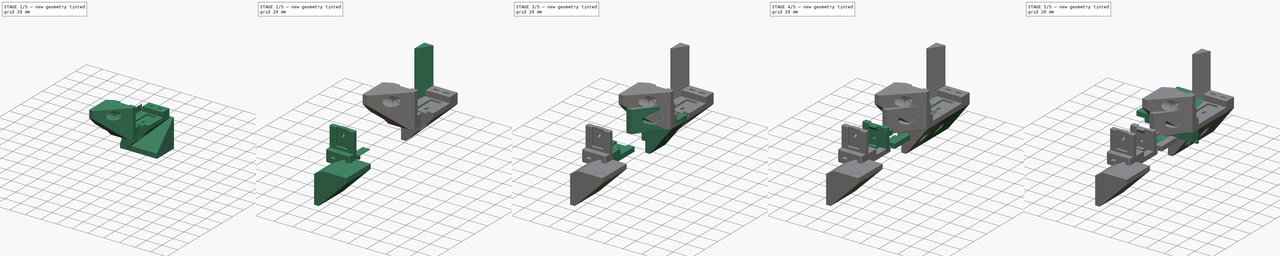
[diagram: build sequence overview — one tinted view per stage of 5, left to right]
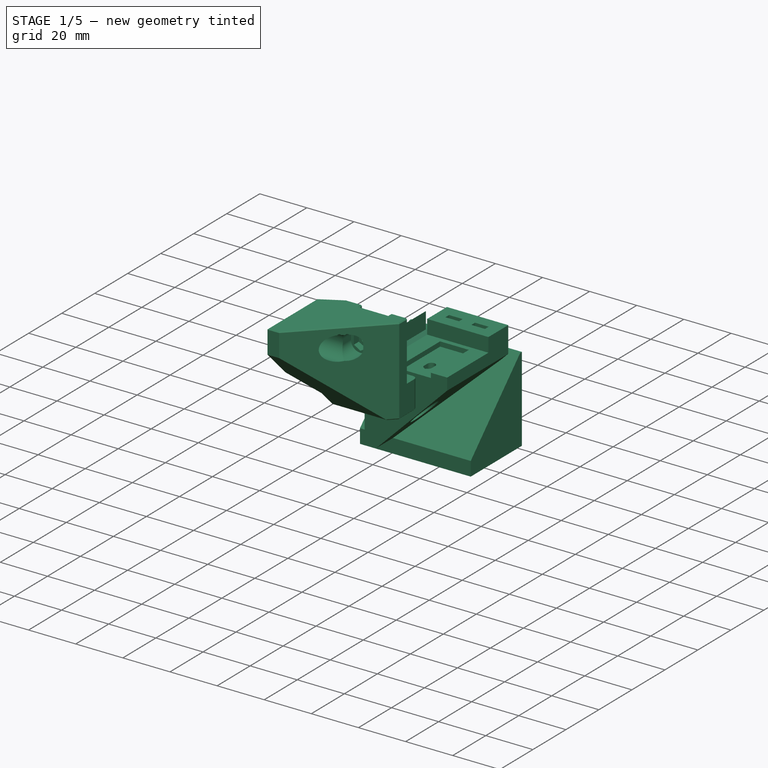
[diagram: stage 1 of 5 — iso view after this stage's code; geometry added in this stage tinted green]
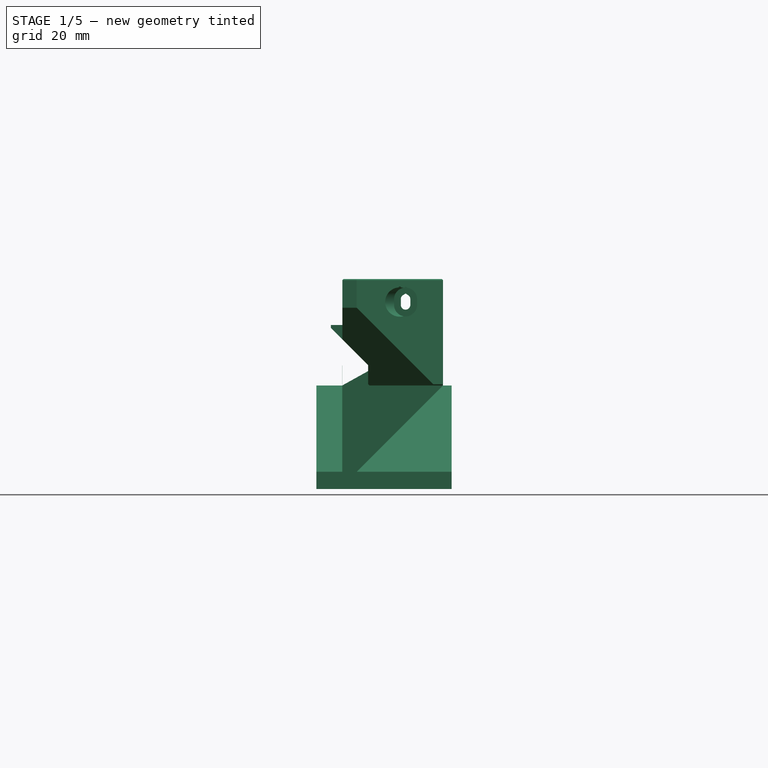
[diagram: stage 1 of 5 — front view after this stage's code; geometry added in this stage tinted green]
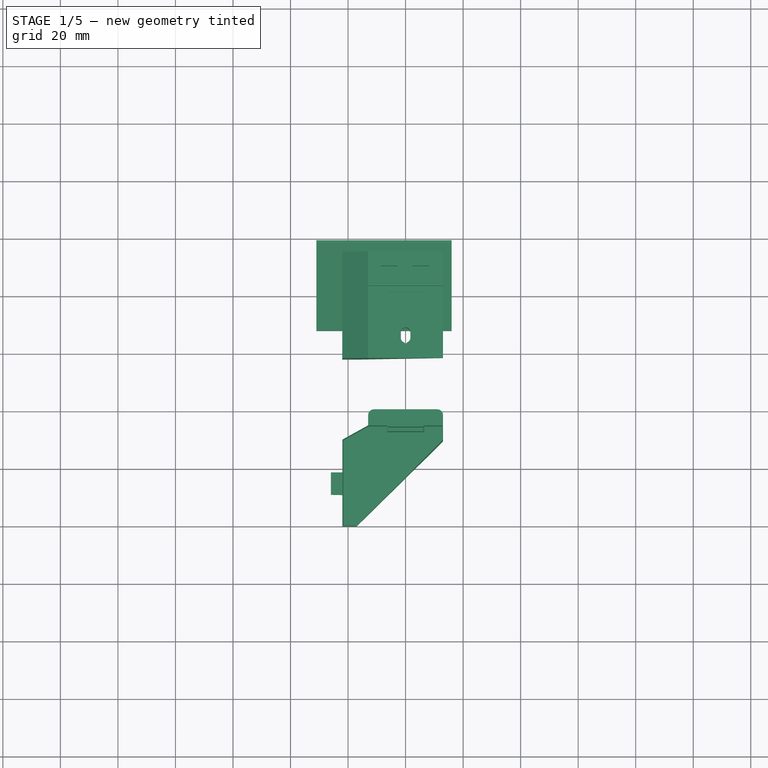
[diagram: stage 1 of 5 — top view after this stage's code; geometry added in this stage tinted green]
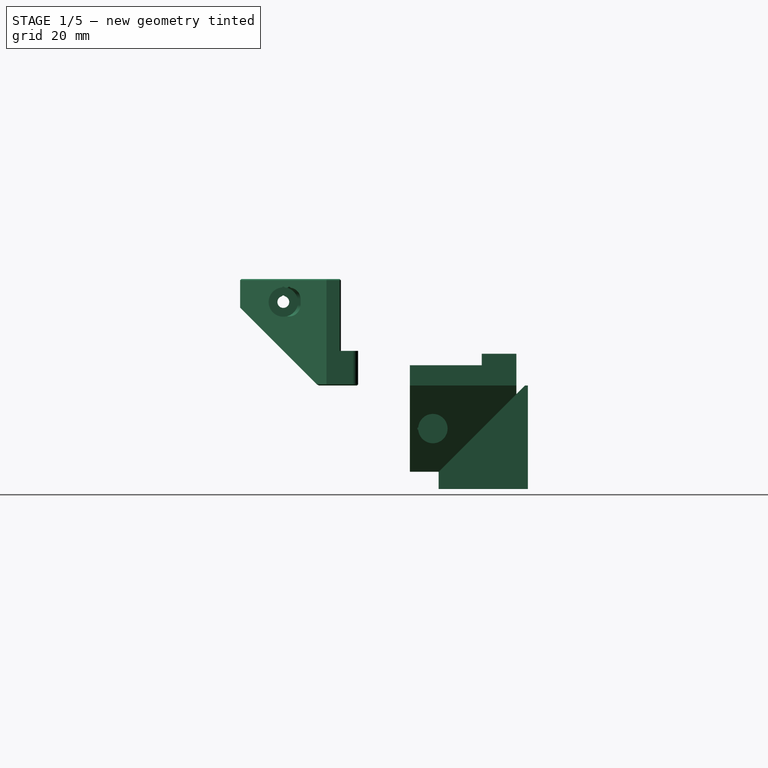
[diagram: stage 1 of 5 — right view after this stage's code; geometry added in this stage tinted green]
FCSTD DOCUMENT  (FreeCAD 0.18R14555 (Git shallow))
Label: 01-original-prusa-300mm-rail
License: All rights reserved
LicenseURL: http://en.wikipedia.org/wiki/All_rights_reserved
objects: Part::Box×48, Part::Cut×39, Part::Cylinder×31, Part::Feature×24, Part::MultiFuse×18, Part::Chamfer×15, App::DocumentObjectGroup×4, Sketcher::SketchObject×3, PartDesign::Pad×3, PartDesign::Body×3, Part::Fillet×2
note: 189 computed .brp shape members not serialized (recipe doc carries the construction recipe); baked Part::Feature solids carry a one-line shape summary decoded from their .brp

FEATURE [Part::Box] Box138  label="01-cut-out010"
  AttacherType = Attacher::AttachEngine3D
  Height = 2
  Length = 12.2
  Placement = pos=(-6.1,118,3) rot=(0,0,1;0rad)
  Width = 23
FEATURE [Part::Box] Box141  label="square-nut-017"
  AttacherType = Attacher::AttachEngine3D
  Height = 11
  Length = 5.8
  Placement = pos=(-8.6,147.8,0.5) rot=(0,0,1;0rad)
  Width = 2.2
FEATURE [Part::Cylinder] Cylinder045  label="drill-hole-017"
  Angle = 360
  AttacherType = Attacher::AttachEngine3D
  Height = 10
  Placement = pos=(-5.5,155,3.5) rot=(1,0,0;1.5708rad)
  Radius = 1.65
FEATURE [Part::Box] Box147  label="square-nut-018"
  AttacherType = Attacher::AttachEngine3D
  Height = 11
  Length = 5.8
  Placement = pos=(2.4,147.8,0.5) rot=(0,0,1;0rad)
  Width = 2.2
FEATURE [Part::Cylinder] Cylinder046  label="drill-hole-018"
  Angle = 360
  AttacherType = Attacher::AttachEngine3D
  Height = 10
  Placement = pos=(5.5,155,3.5) rot=(1,0,0;1.5708rad)
  Radius = 1.65
FEATURE [Part::Box] Box149  label="head-stopper007"
  AttacherType = Attacher::AttachEngine3D
  Height = 11
  Length = 26
  Placement = pos=(-13,143,0) rot=(0,0,1;0rad)
  Width = 12
FEATURE [Part::Cylinder] Cylinder056
  Angle = 360
  AttacherType = Attacher::AttachEngine3D
  Height = 30
  Placement = pos=(6,126,-15) rot=(0,-1,0;1.5708rad)
  Radius = 2.05
FEATURE [Part::Cylinder] Cylinder057
  Angle = 360
  AttacherType = Attacher::AttachEngine3D
  Height = 30
  Placement = pos=(6,124.2,-15) rot=(0,-1,0;1.5708rad)
  Radius = 0.5
FEATURE [Part::Cylinder] Cylinder058
  Angle = 360
  AttacherType = Attacher::AttachEngine3D
  Height = 30
  Placement = pos=(13,126,-15) rot=(0,-1,0;1.5708rad)
  Radius = 5.1
FEATURE [Part::Cylinder] Cylinder059
  Angle = 360
  AttacherType = Attacher::AttachEngine3D
  Height = 30
  Placement = pos=(13,121.1,-15) rot=(0,-1,0;1.5708rad)
  Radius = 0.5
FEATURE [Part::Cylinder] Cylinder060  label="rail-bolt022"
  Angle = 360
  AttacherType = Attacher::AttachEngine3D
  Height = 44
  Placement = pos=(0,125,0) rot=(0,0,1;0rad)
  Radius = 1.65
FEATURE [Part::Cylinder] Cylinder061  label="rail-bolt023"
  Angle = 360
  AttacherType = Attacher::AttachEngine3D
  Height = 44
  Placement = pos=(0,127,0) rot=(0,0,1;0rad)
  Radius = 1.65
FEATURE [Part::Box] Box160  label="bolt-play005"
  AttacherType = Attacher::AttachEngine3D
  Height = 44
  Length = 3.3
  Placement = pos=(-1.65,125,0) rot=(0,0,1;0rad)
  Width = 2
FEATURE [Part::MultiFuse] Fusion019
  Placement = pos=(0,0,-36) rot=(0,0,1;0rad)
  Shapes = -> [Cylinder060,Cylinder061,Box160]
FEATURE [Part::Cylinder] Cylinder062  label="Cylinder060"
  Angle = 360
  AttacherType = Attacher::AttachEngine3D
  Height = 38
  Placement = pos=(0,123.6,-30) rot=(0,0,1;0rad)
  Radius = 0.5
FEATURE [Part::MultiFuse] Fusion026003003
  Shapes = -> [Cylinder046,Box141,Cylinder045,Box147]
FEATURE [PartDesign::Body] Body  label="bridge-reiangle"
  Group = -> [Sketch,Pad]
  Origin = -> Origin
  Tip = -> Pad
FEATURE [Part::Feature] Pad002
  Placement = pos=(-15,155,3.4e-14) rot=(1,0,0;1.5708rad)
  shape: bbox 35 x 37 x 35 mm, 8 faces (baked)
FEATURE [Part::Cut] Cut001003002047034002
  Base = -> Pad002
  Tool = -> Box138
FEATURE [Part::MultiFuse] Fusion026003004
  Shapes = -> [Cut001003002047034002,Box149]
FEATURE [Part::Cut] Cut001003002047034003
  Base = -> Fusion026003004
  Tool = -> Fusion026003003
FEATURE [Part::Cut] Cut001003002047034004
  Base = -> Cut001003002047034003
  Tool = -> Fusion019
FEATURE [Part::Cut] Cut001003002047034005
  Base = -> Cut001003002047034004
  Tool = -> Cylinder062
FEATURE [Part::Cut] Cut001003002047034006
  Base = -> Cut001003002047034005
  Tool = -> Cylinder056
FEATURE [Part::Cut] Cut001003002047034007
  Base = -> Cut001003002047034006
  Tool = -> Cylinder057
FEATURE [Part::Cut] Cut001003002047034008
  Base = -> Cut001003002047034007
  Tool = -> Cylinder058
FEATURE [Part::Cut] Cut001003002047034009
  Base = -> Cut001003002047034008
  Tool = -> Cylinder059
FEATURE [Part::Box] Box170  label="Cube028"
  AttacherType = Attacher::AttachEngine3D
  Height = 37
  Length = 0.05
  Placement = pos=(-22,118,-30) rot=(0,0,1;0rad)
  Width = 37
FEATURE [Part::Box] Box171  label="Cube029"
  AttacherType = Attacher::AttachEngine3D
  Height = 36
  Length = 38
  Placement = pos=(-22,160,-30) rot=(0,0,1;0rad)
  Width = 31
FEATURE [Part::Chamfer] Chamfer008013
  Base = -> Box171
  Edges = 1 edges r=30: [Edge10]
  Placement = pos=(0,-35,-6) rot=(0,0,1;0rad)
FEATURE [Part::Feature] Chamfer008013001  label="Chamfer008014"
  Placement = pos=(-9,-35,-6) rot=(0,0,1;0rad)
  shape: bbox 38 x 31 x 36 mm, 7 faces (baked)
FEATURE [Part::MultiFuse] Fusion026003006
  Placement = pos=(0,3,0) rot=(0,0,1;0rad)
  Shapes = -> [Chamfer008013,Chamfer008013001]
FEATURE [Part::Feature] Cut001003002047034015001  label="tail-rev-004"
  shape: bbox 38.95 x 37 x 41 mm, 63 faces (baked)
FEATURE [Part::Fillet] Fillet001
  Base = -> Cut001003002047034015001
  Edges = 2 edges r=2: [Edge1,Edge4]
FEATURE [Part::Chamfer] Chamfer008013003  label="tail-rev2-exp"
  Base = -> Fillet001
  Edges = 21 edges r=0.4: [Edge1,Edge13,Edge14,Edge15,Edge16,Edge17,Edge18,Edge60,Edge70,Edge71,Edge74,Edge75,Edge76,Edge77,Edge78,Edge87,Edge88,Edge90,Edge98,Edge99,Edge100]
  Placement = pos=(0,89,155) rot=(-1,0,0;1.5708rad)
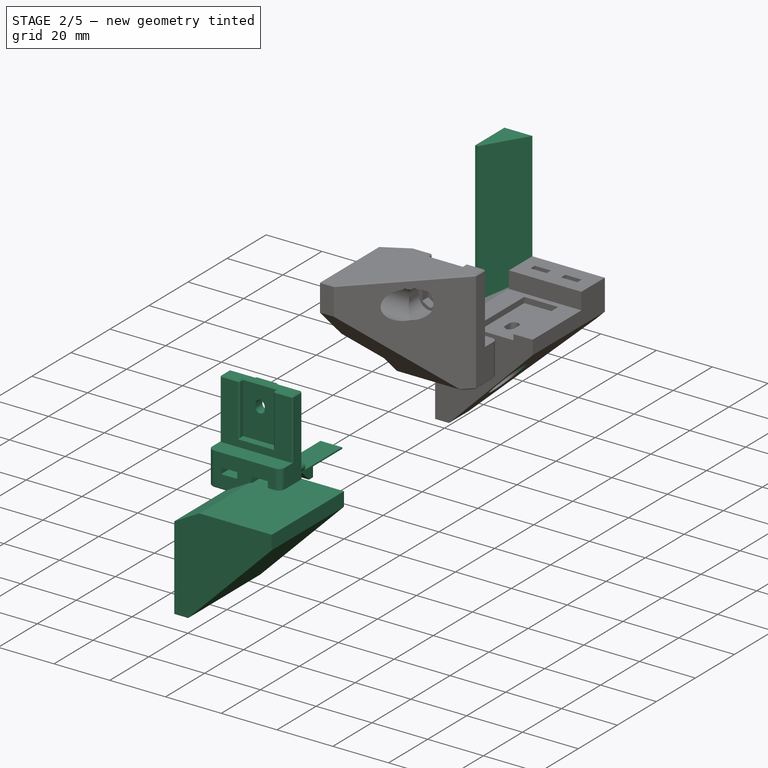
[diagram: stage 2 of 5 — iso view after this stage's code; geometry added in this stage tinted green]
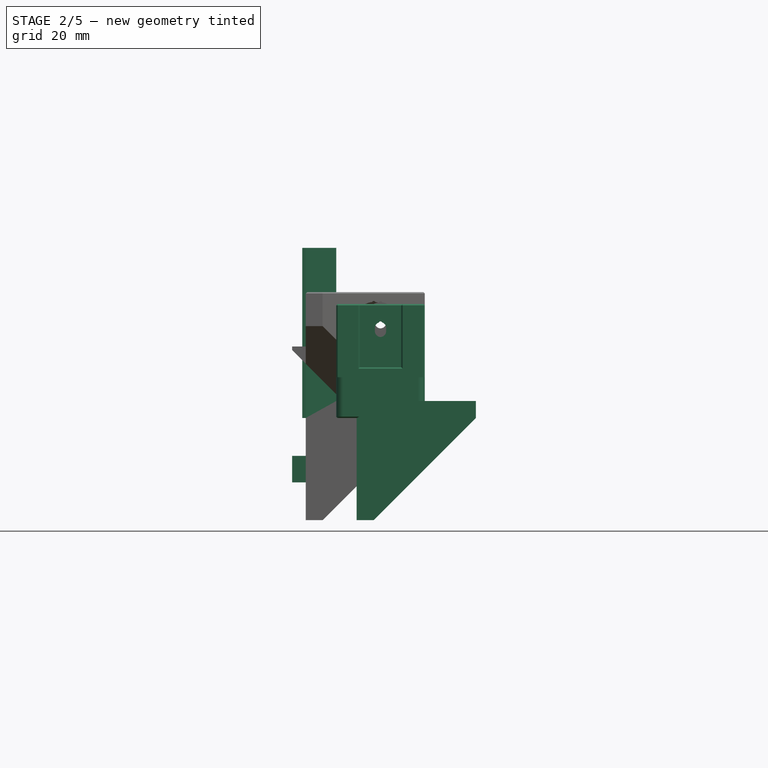
[diagram: stage 2 of 5 — front view after this stage's code; geometry added in this stage tinted green]
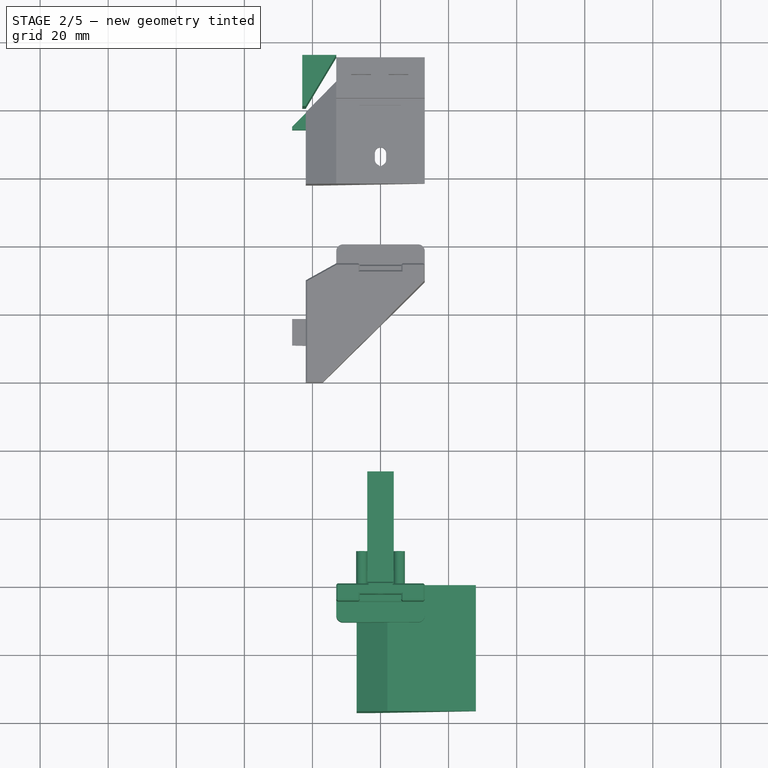
[diagram: stage 2 of 5 — top view after this stage's code; geometry added in this stage tinted green]
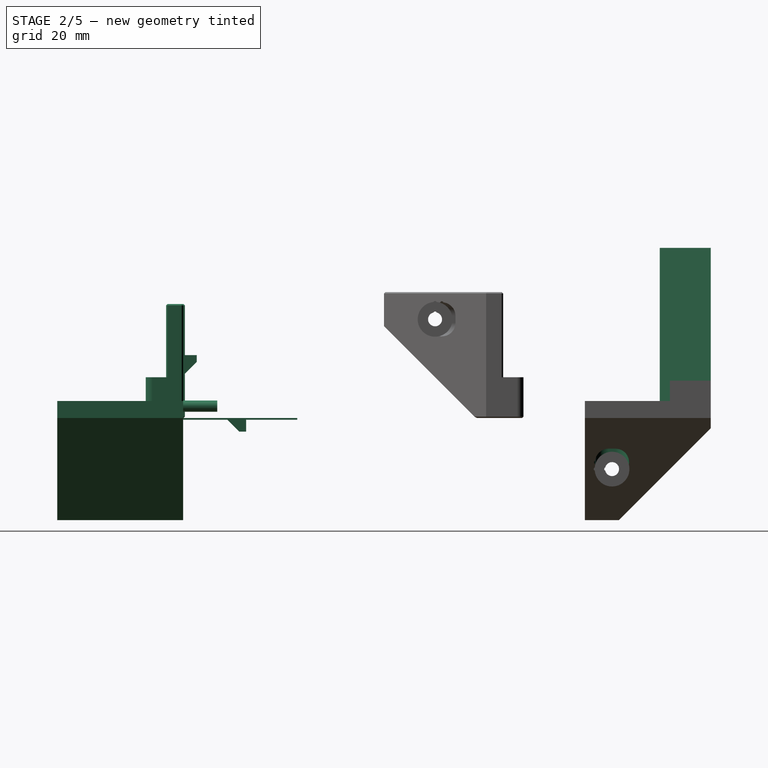
[diagram: stage 2 of 5 — right view after this stage's code; geometry added in this stage tinted green]
FEATURE [Part::Cylinder] Cylinder028  label="drill-hole-011"
  Angle = 360
  AttacherType = Attacher::AttachEngine3D
  Height = 10
  Placement = pos=(-5.5,10,3.5) rot=(1,0,0;1.5708rad)
  Radius = 1.65
FEATURE [Part::Cylinder] Cylinder029  label="drill-hole-012"
  Angle = 360
  AttacherType = Attacher::AttachEngine3D
  Height = 10
  Placement = pos=(5.5,10,3.5) rot=(1,0,0;1.5708rad)
  Radius = 1.65
FEATURE [Part::Cylinder] Cylinder043  label="rail-bolt020"
  Angle = 360
  AttacherType = Attacher::AttachEngine3D
  Height = 50
  Placement = pos=(0,127,0) rot=(0,0,1;0rad)
  Radius = 4
FEATURE [Part::Box] Box145  label="bolt-play004"
  AttacherType = Attacher::AttachEngine3D
  Height = 50
  Length = 8
  Placement = pos=(-4,125,0) rot=(0,0,1;0rad)
  Width = 2
FEATURE [Part::Cylinder] Cylinder044  label="rail-bolt021"
  Angle = 360
  AttacherType = Attacher::AttachEngine3D
  Height = 50
  Placement = pos=(0,125,0) rot=(0,0,1;0rad)
  Radius = 4
FEATURE [Part::MultiFuse] Fusion020
  Placement = pos=(0,0,-55) rot=(0,0,1;0rad)
  Shapes = -> [Cylinder044,Box145,Cylinder043]
FEATURE [Part::Cylinder] Cylinder063  label="Cylinder061"
  Angle = 360
  AttacherType = Attacher::AttachEngine3D
  Height = 38
  Placement = pos=(0,121.2,-43) rot=(0,0,1;0rad)
  Radius = 0.5
FEATURE [Part::Feature] Body043003  label="hex-nut-004"
  Placement = pos=(0,127,0) rot=(0,0,1;0rad)
  shape: bbox 5.543 x 6.4 x 3 mm, 8 faces (baked)
FEATURE [Part::Feature] Body043004  label="hex-nut-005"
  Placement = pos=(0,125,0) rot=(0,0,1;0rad)
  shape: bbox 5.543 x 6.4 x 3 mm, 8 faces (baked)
FEATURE [Part::MultiFuse] Fusion021
  Placement = pos=(0,0,-5) rot=(0,0,1;0rad)
  Shapes = -> [Body043004,Body043003]
FEATURE [Part::Box] Box162  label="Cube022"
  AttacherType = Attacher::AttachEngine3D
  Height = 7.8
  Length = 4
  Placement = pos=(-19,134,-18.9) rot=(0,0,1;0rad)
  Width = 5
FEATURE [Part::Box] Box163  label="Cube023"
  AttacherType = Attacher::AttachEngine3D
  Height = 7.8
  Length = 5
  Placement = pos=(-28,134,-18.9) rot=(0,0,1;0rad)
  Width = 5
FEATURE [Part::Chamfer] Chamfer008
  Base = -> Box163
  Edges = 1 edges r=4: [Edge5]
  Placement = pos=(8,1,0) rot=(0,0,1;0rad)
FEATURE [App::DocumentObjectGroup] Group001  label="node"
  Group = -> [Cut001003002040]
FEATURE [Part::Box] Box093  label="bolt-stopper004"
  AttacherType = Attacher::AttachEngine3D
  Height = 4
  Length = 7.8
  Placement = pos=(-3.9,13,-4) rot=(0,0,1;0rad)
  Width = 5.5
FEATURE [Part::Box] Box168  label="bolt-stopper005"
  AttacherType = Attacher::AttachEngine3D
  Height = 0.5
  Length = 7.8
  Placement = pos=(-3.9,0,-0.5) rot=(0,0,1;0rad)
  Width = 33.5
FEATURE [Part::Box] Box169  label="bolt-stopper006"
  AttacherType = Attacher::AttachEngine3D
  Height = 6
  Length = 7.8
  Placement = pos=(-3.9,8,-11) rot=(0,0,1;0rad)
  Width = 5.5
FEATURE [Part::Chamfer] Chamfer008003
  Base = -> Box169
  Edges = 1 edges r=5: [Edge12]
  Placement = pos=(0,4,5) rot=(0,0,1;0rad)
FEATURE [Part::Cut] Cut001003002044
  Base = -> Box093
  Tool = -> Chamfer008003
FEATURE [Part::MultiFuse] Fusion032
  Shapes = -> [Cylinder029,Cylinder028]
FEATURE [Part::Cut] Cut001003002047012
  Base = -> Box162
  Placement = pos=(-6.95,0,0) rot=(0,0,1;0rad)
  Tool = -> Chamfer008
FEATURE [App::DocumentObjectGroup] Group  label="head"
  Group = -> [Cut001003002047034]
FEATURE [Part::Feature] Cut001003002047034001  label="head-rev-003"
  shape: bbox 26 x 33.5 x 15 mm, 42 faces (baked)
FEATURE [Part::Fillet] Fillet
  Base = -> Cut001003002047034001
  Edges = 2 edges r=2: [Edge60,Edge62]
FEATURE [Part::Chamfer] Chamfer008012  label="head-rev2-exp"
  Base = -> Fillet
  Edges = 40 edges r=0.4: [Edge1,Edge2,Edge3,Edge4,Edge5,Edge6,Edge7,Edge8,Edge9,Edge10,Edge11,Edge12,Edge13,Edge14,Edge15,Edge16,Edge17,Edge18,Edge19,Edge20,Edge22,Edge24,Edge26,Edge27,Edge31,Edge47,Edge52,Edge54,Edge55,Edge57,Edge62,Edge68,Edge69,Edge70,Edge71,Edge72,Edge73,Edge74,Edge75,Edge76]
  Placement = pos=(0,0,0) rot=(1,0,0;1.5708rad)
FEATURE [PartDesign::Pad] Pad
  Length = 37
  Length2 = 100
  Placement = pos=(0,0,0) rot=(1,0,0;1.5708rad)
  Profile = -> Sketch
  Type = 0
FEATURE [Part::Cut] Cut001003002047034010
  Base = -> Cut001003002047034009
  Tool = -> Fusion020
FEATURE [Part::Cut] Cut001003002047034011
  Base = -> Cut001003002047034010
  Tool = -> Cylinder063
FEATURE [Part::Cut] Cut001003002047034012
  Base = -> Cut001003002047034011
  Tool = -> Fusion021
FEATURE [Part::Cut] Cut001003002047034013
  Base = -> Cut001003002047034012
  Tool = -> Box170
FEATURE [Part::MultiFuse] Fusion026003005
  Shapes = -> [Cut001003002047034013,Cut001003002047012]
FEATURE [Sketcher::SketchObject] Sketch002
  MapMode = 5
  Support = -> [XY_Plane002]
  sketch-geometry (4):
    g0: LineSegment StartX=-23 StartY=155 StartZ=0 EndX=-13 EndY=155 EndZ=0
    g1: LineSegment StartX=-23 StartY=155 StartZ=0 EndX=-23 EndY=140 EndZ=0
    g2: LineSegment StartX=-22 StartY=140 StartZ=0 EndX=-13 EndY=155 EndZ=0
    g3: LineSegment StartX=-23 StartY=140 StartZ=0 EndX=-22 EndY=140 EndZ=0
FEATURE [PartDesign::Pad] Pad003
  Length = 50
  Length2 = 100
  Profile = -> Sketch002
  Type = 0
FEATURE [PartDesign::Body] Body043006
  Group = -> [Sketch002,Pad003]
  Origin = -> Origin002
  Tip = -> Pad003
FEATURE [Part::Feature] Body043006001  label="Body043007"
  Placement = pos=(0,0,-37) rot=(0,0,1;0rad)
  shape: bbox 10 x 15 x 50 mm, 6 faces (baked)
FEATURE [Part::Box] Box172  label="Cube030"
  AttacherType = Attacher::AttachEngine3D
  Height = 41
  Length = 13
  Placement = pos=(-26,118,-33) rot=(0,0,1;0rad)
  Width = 31
FEATURE [Part::Chamfer] Chamfer008013002
  Base = -> Box172
  Edges = 1 edges r=9: [Edge5]
  Placement = pos=(0,21,0) rot=(0,0,1;0rad)
FEATURE [Part::Cut] Cut001003002047034014
  Base = -> Fusion026003005
  Tool = -> Fusion026003006
FEATURE [Part::Cut] Cut001003002047034015  label="tail-rev-2"
  Base = -> Cut001003002047034014
  Tool = -> Chamfer008013002
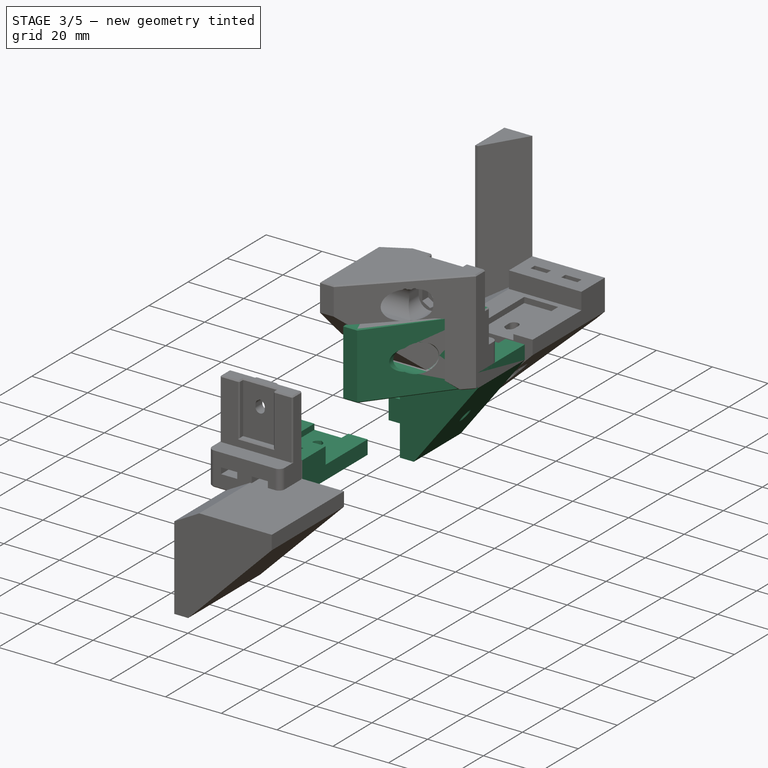
[diagram: stage 3 of 5 — iso view after this stage's code; geometry added in this stage tinted green]
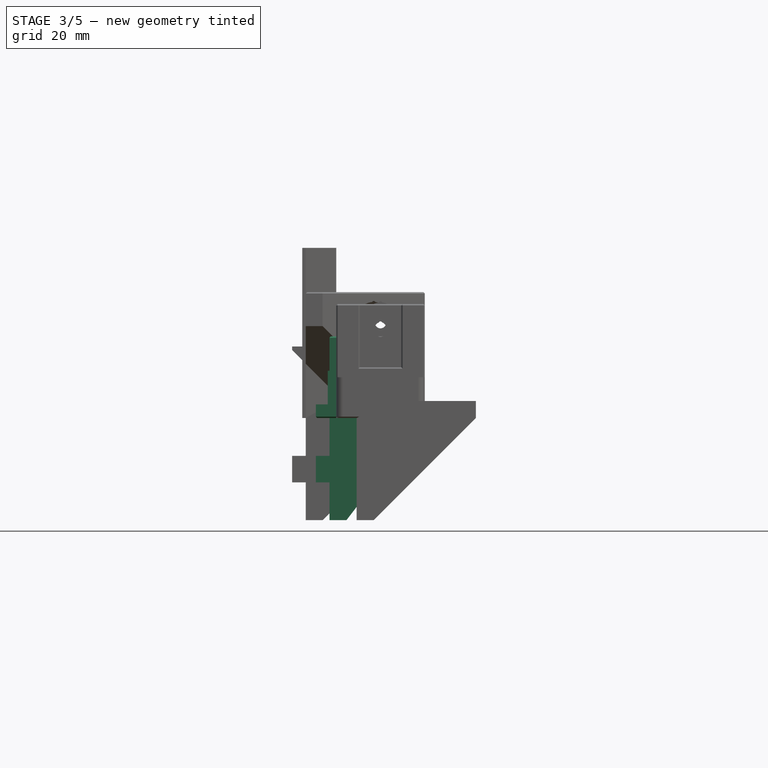
[diagram: stage 3 of 5 — front view after this stage's code; geometry added in this stage tinted green]
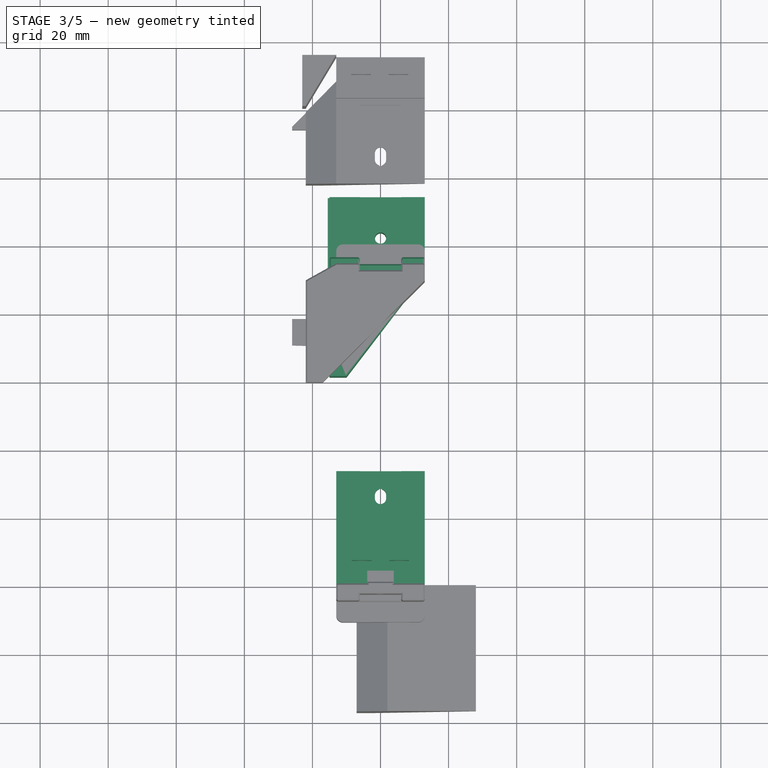
[diagram: stage 3 of 5 — top view after this stage's code; geometry added in this stage tinted green]
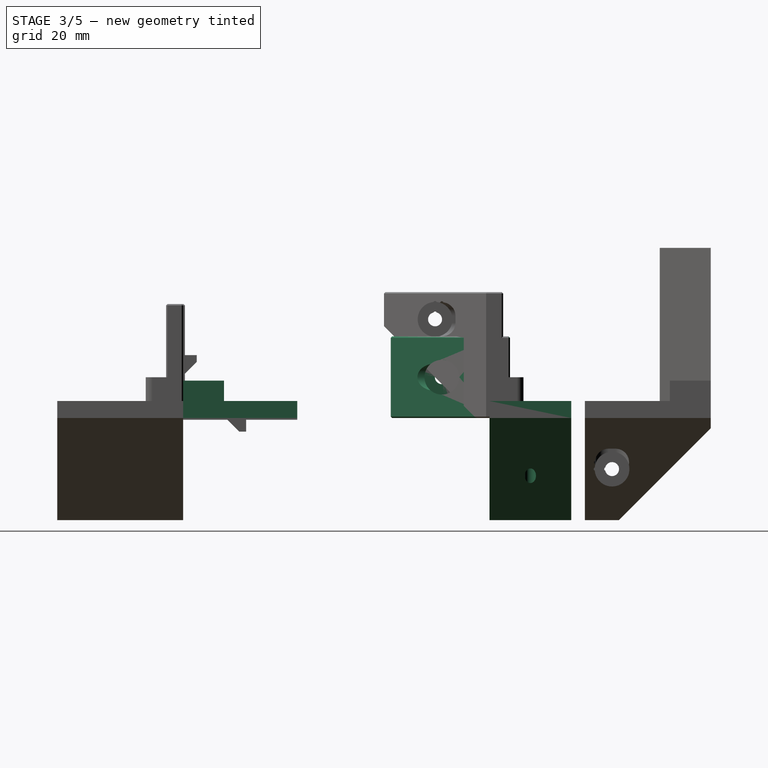
[diagram: stage 3 of 5 — right view after this stage's code; geometry added in this stage tinted green]
FEATURE [Part::Cylinder] Cylinder027  label="rail-bolt013"
  Angle = 360
  AttacherType = Attacher::AttachEngine3D
  Height = 13
  Placement = pos=(0,27.9,-0.5) rot=(0,0,1;0rad)
  Radius = 0.5
FEATURE [Part::Box] Box095  label="square-nut-011"
  AttacherType = Attacher::AttachEngine3D
  Height = 11
  Length = 5.8
  Placement = pos=(2.6,5,0.5) rot=(0,0,1;0rad)
  Width = 2.2
FEATURE [Part::Box] Box096  label="square-nut-012"
  AttacherType = Attacher::AttachEngine3D
  Height = 11
  Length = 5.8
  Placement = pos=(-8.4,5,0.5) rot=(0,0,1;0rad)
  Width = 2.2
FEATURE [Part::Box] Box098  label="rail-side-015"
  AttacherType = Attacher::AttachEngine3D
  Height = 5
  Length = 7
  Placement = pos=(-13,0,0) rot=(0,0,1;0rad)
  Width = 33.5
FEATURE [Part::Box] Box099  label="rail-side-016"
  AttacherType = Attacher::AttachEngine3D
  Height = 5
  Length = 7
  Placement = pos=(6,0,0) rot=(0,0,1;0rad)
  Width = 33.5
FEATURE [Part::Box] Box100  label="head-stopper004"
  AttacherType = Attacher::AttachEngine3D
  Height = 11
  Length = 26
  Placement = pos=(-13,0,0) rot=(0,0,1;0rad)
  Width = 12
FEATURE [Part::Box] Box101  label="head-slot002"
  AttacherType = Attacher::AttachEngine3D
  Height = 5
  Length = 26
  Placement = pos=(-13,0,0) rot=(0,0,1;0rad)
  Width = 15
FEATURE [Part::Box] Box102  label="01-cut-out007"
  AttacherType = Attacher::AttachEngine3D
  Height = 2
  Length = 12.2
  Placement = pos=(-6.1,14.9,3) rot=(0,0,1;0rad)
  Width = 18.6
FEATURE [Part::Box] Box104  label="base006"
  AttacherType = Attacher::AttachEngine3D
  Height = 3
  Length = 26
  Placement = pos=(-13,0,0) rot=(0,0,1;0rad)
  Width = 33.5
FEATURE [Part::Cylinder] Cylinder030  label="rail-bolt014"
  Angle = 360
  AttacherType = Attacher::AttachEngine3D
  Height = 13
  Placement = pos=(0,25.5,0) rot=(0,0,1;0rad)
  Radius = 1.65
FEATURE [Part::Box] Box105  label="bolt-spacer"
  AttacherType = Attacher::AttachEngine3D
  Height = 10
  Length = 3.3
  Placement = pos=(-1.65,25.5,0) rot=(0,0,1;0rad)
  Width = 1
FEATURE [Sketcher::SketchObject] Sketch
  MapMode = 5
  Placement = pos=(0,0,0) rot=(1,0,0;1.5708rad)
  Support = -> [XZ_Plane]
  sketch-geometry (6):
    g0: LineSegment StartX=28 StartY=5 StartZ=0 EndX=28 EndY=0 EndZ=0
    g1: LineSegment StartX=-7 StartY=-30 StartZ=0 EndX=-2 EndY=-30 EndZ=0
    g2: LineSegment StartX=-2 StartY=-30 StartZ=0 EndX=28 EndY=0 EndZ=0
    g3: LineSegment StartX=2 StartY=5 StartZ=0 EndX=28 EndY=5 EndZ=0
    g4: LineSegment StartX=2 StartY=5 StartZ=0 EndX=-7 EndY=0 EndZ=0
    g5: LineSegment StartX=-7 StartY=0 StartZ=0 EndX=-7 EndY=-30 EndZ=0
FEATURE [Part::Feature] Body042  label="bridge-reiangle-bridge-node"
  Placement = pos=(-15,114,0) rot=(0,0,1;0rad)
  shape: bbox 28 x 24 x 35 mm, 7 faces (baked)
FEATURE [Part::Box] Box154  label="Cube015"
  AttacherType = Attacher::AttachEngine3D
  Height = 2
  Length = 12.2
  Placement = pos=(-6.1,90,3) rot=(0,0,1;0rad)
  Width = 24
FEATURE [Part::Box] Box155  label="Cube016"
  AttacherType = Attacher::AttachEngine3D
  Height = 7.8
  Length = 0.5
  Placement = pos=(-15.5,90,-18.9) rot=(0,0,1;0rad)
  Width = 24
FEATURE [Part::Cut] Cut001003002002
  Base = -> Body042
  Tool = -> Box154
FEATURE [Part::MultiFuse] Fusion015
  Shapes = -> [Cut001003002002,Box155]
FEATURE [Part::Cylinder] Cylinder047  label="Cylinder001"
  Angle = 360
  AttacherType = Attacher::AttachEngine3D
  Height = 27
  Placement = pos=(0,102,-20) rot=(0,0,1;0rad)
  Radius = 1.65
FEATURE [Part::Cut] Cut001003002003
  Base = -> Fusion015
  Tool = -> Cylinder047
FEATURE [PartDesign::Body] Body043  label="hex-nut-2"
  Group = -> [Sketch001,Pad001]
  Origin = -> Origin001
  Tip = -> Pad001
FEATURE [Part::Feature] Body043001  label="hex-nut-003"
  Placement = pos=(0,102,-5) rot=(0,0,1;0rad)
  shape: bbox 5.543 x 6.4 x 3 mm, 8 faces (baked)
FEATURE [Part::Box] Box156  label="Cube017"
  AttacherType = Attacher::AttachEngine3D
  Height = 7.8
  Length = 4
  Placement = pos=(-19,90,-18.9) rot=(0,0,1;0rad)
  Width = 5
FEATURE [Part::Box] Box158  label="Cube019"
  AttacherType = Attacher::AttachEngine3D
  Height = 7.8
  Length = 5
  Placement = pos=(-23,106,-18.9) rot=(0,0,1;0rad)
  Width = 5
FEATURE [Part::Chamfer] Chamfer005
  Base = -> Box158
  Edges = 1 edges r=4: [Edge5]
  Placement = pos=(3,-16,0) rot=(0,0,1;0rad)
FEATURE [Part::Cylinder] Cylinder067  label="rail-bolt025"
  Angle = 360
  AttacherType = Attacher::AttachEngine3D
  Height = 13
  Placement = pos=(0,26.5,0) rot=(0,0,1;0rad)
  Radius = 1.65
FEATURE [Part::MultiFuse] Fusion
  Placement = pos=(0,0,-2) rot=(0,0,1;0rad)
  Shapes = -> [Cylinder030,Cylinder067,Box105]
FEATURE [Part::MultiFuse] Fusion030
  Shapes = -> [Box101,Box104,Box100,Box099,Box098,Box168]
FEATURE [Part::Cut] Cut001003002041
  Base = -> Fusion030
  Tool = -> Box102
FEATURE [Part::Cut] Cut001003002042
  Base = -> Cut001003002041
  Tool = -> Fusion
FEATURE [Part::Cut] Cut001003002043
  Base = -> Cut001003002042
  Tool = -> Cylinder027
FEATURE [Part::MultiFuse] Fusion031
  Shapes = -> [Cut001003002043,Cut001003002044]
FEATURE [Part::Cut] Cut001003002045
  Base = -> Fusion031
  Tool = -> Fusion032
FEATURE [Part::Cut] Cut001003002047032
  Base = -> Box156
  Tool = -> Chamfer005
FEATURE [App::DocumentObjectGroup] Group003  label="node-bridge"
  Group = -> [Cut,Fusion026003]
FEATURE [Part::Feature] Fusion026003001  label="bridge-rev-003"
  shape: bbox 32 x 24 x 35 mm, 36 faces (baked)
FEATURE [Part::Chamfer] Chamfer008011  label="bridge-rev2-exp"
  Base = -> Fusion026003001
  Edges = 27 edges r=0.4: [Edge15,Edge34,Edge35,Edge36,Edge37,Edge38,Edge39,Edge40,Edge41,Edge42,Edge44,Edge46,Edge49,Edge50,Edge51,Edge52,Edge59,Edge60,Edge61,Edge62,Edge63,Edge64,Edge65,Edge66,Edge68,Edge69,Edge94]
  Placement = pos=(0,91,114) rot=(-1,0,0;1.5708rad)
FEATURE [Part::Cut] Cut001003002047033
  Base = -> Cut001003002045
  Tool = -> Box096
FEATURE [Part::Cut] Cut001003002047034  label="head-rev-2"
  Base = -> Cut001003002047033
  Tool = -> Box095
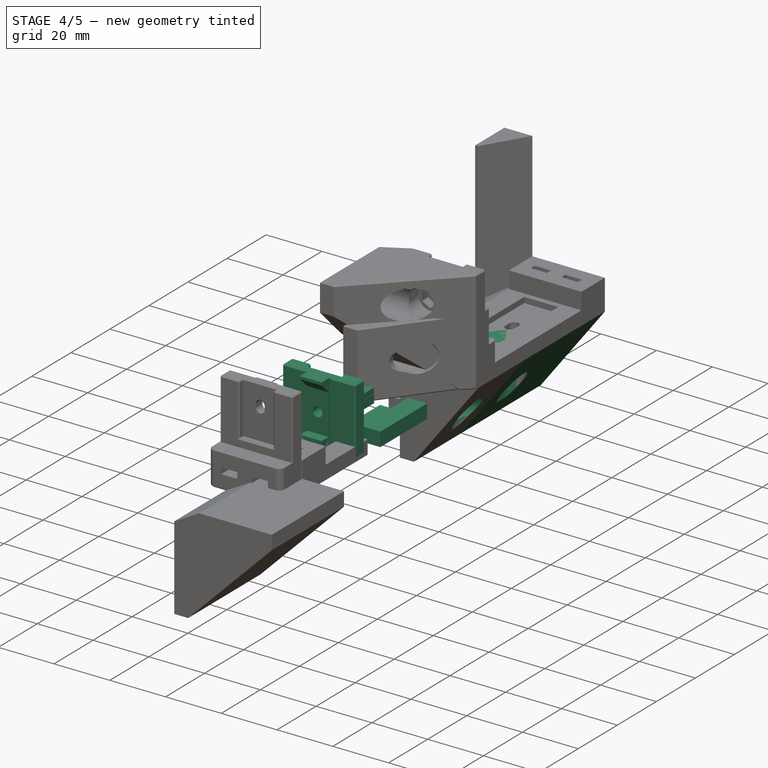
[diagram: stage 4 of 5 — iso view after this stage's code; geometry added in this stage tinted green]
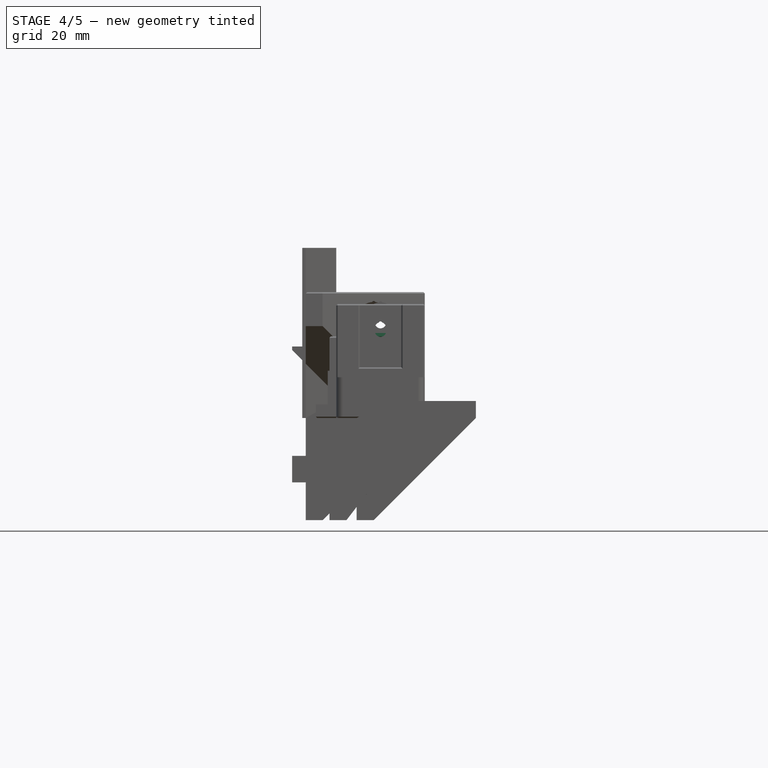
[diagram: stage 4 of 5 — front view after this stage's code; geometry added in this stage tinted green]
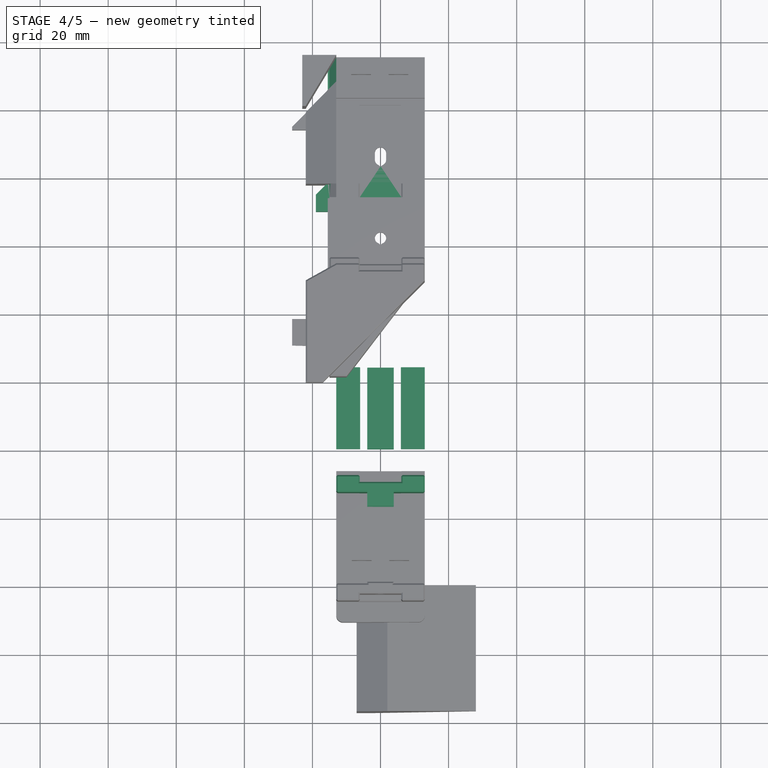
[diagram: stage 4 of 5 — top view after this stage's code; geometry added in this stage tinted green]
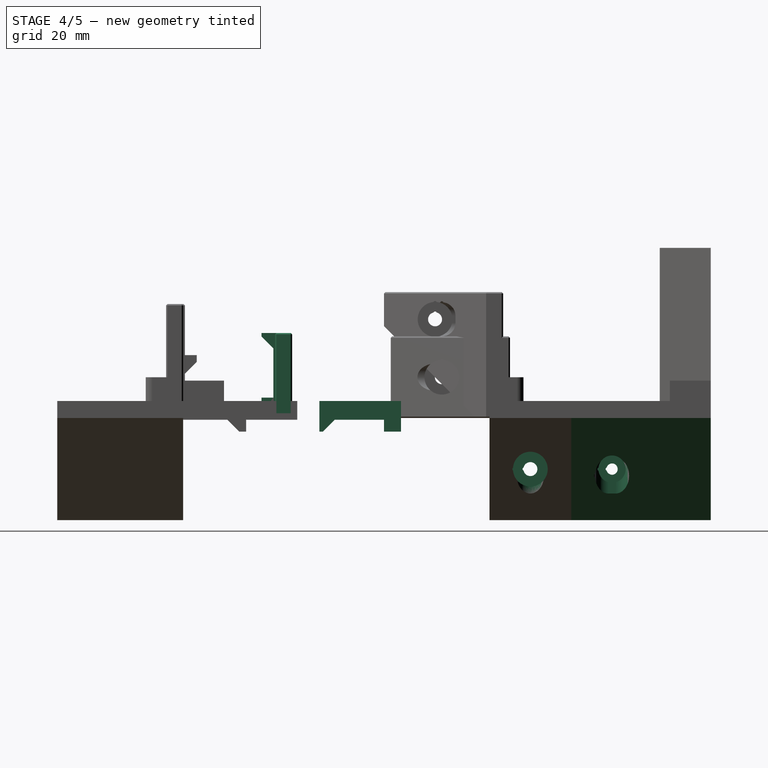
[diagram: stage 4 of 5 — right view after this stage's code; geometry added in this stage tinted green]
FEATURE [Part::Feature] Body007  label="45-slope005"
  Placement = pos=(-33,90,4) rot=(0,0,1;3.14159rad)
  shape: bbox 8 x 4 x 4 mm, 5 faces (baked)
FEATURE [Part::Box] Box040  label="01-cut-out002"
  AttacherType = Attacher::AttachEngine3D
  Height = 2
  Length = 12.2
  Placement = pos=(-6.1,40,3) rot=(0,0,1;0rad)
  Width = 24
FEATURE [Part::Box] Box058  label="rail-side-009"
  AttacherType = Attacher::AttachEngine3D
  Height = 5
  Length = 7
  Placement = pos=(6,40,0) rot=(0,0,1;0rad)
  Width = 24
FEATURE [Part::Box] Box060  label="rail-side-010"
  AttacherType = Attacher::AttachEngine3D
  Height = 5
  Length = 7
  Placement = pos=(-13,40,0) rot=(0,0,1;0rad)
  Width = 24
FEATURE [Part::Cylinder] Cylinder
  Angle = 360
  AttacherType = Attacher::AttachEngine3D
  Height = 27
  Placement = pos=(10,102,-15) rot=(0,-1,0;1.5708rad)
  Radius = 2.05
FEATURE [Part::Cylinder] Cylinder048
  Angle = 360
  AttacherType = Attacher::AttachEngine3D
  Height = 27
  Placement = pos=(17,102,-15) rot=(0,-1,0;1.5708rad)
  Radius = 5.1
FEATURE [Part::Cylinder] Cylinder049
  Angle = 360
  AttacherType = Attacher::AttachEngine3D
  Height = 27
  Placement = pos=(0,102,-32) rot=(0,0,1;0rad)
  Radius = 4
FEATURE [Part::Cylinder] Cylinder050
  Angle = 360
  AttacherType = Attacher::AttachEngine3D
  Height = 27
  Placement = pos=(10,100.2,-15) rot=(0,-1,0;1.5708rad)
  Radius = 0.5
FEATURE [Part::Cylinder] Cylinder051
  Angle = 360
  AttacherType = Attacher::AttachEngine3D
  Height = 27
  Placement = pos=(0,100.6,-20) rot=(0,0,1;0rad)
  Radius = 0.5
FEATURE [Part::Box] Box157  label="Cube018"
  AttacherType = Attacher::AttachEngine3D
  Height = 7.8
  Length = 4
  Placement = pos=(-19,110,-18.9) rot=(0,0,1;0rad)
  Width = 4
FEATURE [Part::Cylinder] Cylinder064
  Angle = 360
  AttacherType = Attacher::AttachEngine3D
  Height = 27
  Placement = pos=(0,98.2,-32) rot=(0,0,1;0rad)
  Radius = 0.5
FEATURE [Part::Cylinder] Cylinder065
  Angle = 360
  AttacherType = Attacher::AttachEngine3D
  Height = 27
  Placement = pos=(17,97.2,-15) rot=(0,-1,0;1.5708rad)
  Radius = 0.5
FEATURE [Part::Box] Box164  label="Cube024"
  AttacherType = Attacher::AttachEngine3D
  Height = 4
  Length = 7.8
  Placement = pos=(-3.9,40,-4) rot=(0,0,1;0rad)
  Width = 5
FEATURE [Part::Box] Box165  label="Cube025"
  AttacherType = Attacher::AttachEngine3D
  Height = 4
  Length = 7.8
  Placement = pos=(-3.9,59,-4) rot=(0,0,1;0rad)
  Width = 5
FEATURE [Part::Box] Box166  label="Cube026"
  AttacherType = Attacher::AttachEngine3D
  Height = 0.5
  Length = 7.8
  Placement = pos=(-3.9,40,-0.5) rot=(0,0,1;0rad)
  Width = 24
FEATURE [Part::Box] Box167  label="Cube027"
  AttacherType = Attacher::AttachEngine3D
  Height = 5
  Length = 7.8
  Placement = pos=(-3.9,68,-5) rot=(0,0,1;0rad)
  Width = 5
FEATURE [Part::Chamfer] Chamfer008002
  Base = -> Box167
  Edges = 1 edges r=4: [Edge10]
  Placement = pos=(0,-27,0) rot=(0,0,1;0rad)
FEATURE [Part::MultiFuse] Fusion027
  Shapes = -> [Box060,Box058,Box166]
FEATURE [Part::Cut] Cut001003002037
  Base = -> Fusion027
  Tool = -> Box040
FEATURE [Part::Cut] Cut001003002038
  Base = -> Box164
  Tool = -> Chamfer008002
FEATURE [Part::MultiFuse] Fusion028
  Shapes = -> [Cut001003002037,Cut001003002038,Box165]
FEATURE [Part::Feature] Chamfer008004  label="node-exp001"
  shape: bbox 26 x 22 x 9 mm, 73 faces (baked)
FEATURE [Part::Feature] Fusion026001  label="tail-rev-003"
  shape: bbox 32 x 41 x 41 mm, 68 faces (baked)
FEATURE [Part::Feature] Cut001003002040001  label="node-rev-003"
  shape: bbox 26 x 24 x 9 mm, 20 faces (baked)
FEATURE [Part::Chamfer] Chamfer008005
  Base = -> Fusion026001
  Edges = 3 edges r=0.4: [Edge118,Edge119,Edge120]
FEATURE [Part::Chamfer] Chamfer008008  label="node-rev2-exp"
  Base = -> Cut001003002040001
  Edges = 27 edges r=0.4: [Edge15,Edge23,Edge26,Edge27,Edge28,Edge29,Edge30,Edge31,Edge32,Edge33,Edge34,Edge35,Edge36,Edge37,Edge39,Edge40,Edge41,Edge42,Edge44,Edge45,Edge46,Edge47,Edge48,Edge49,Edge50,Edge51,Edge54]
  Placement = pos=(0,27,65) rot=(-1,0,0;1.5708rad)
FEATURE [Part::Feature] Body043005  label="bridge-reiangle002"
  Placement = pos=(-15,155,0) rot=(0,0,1;0rad)
  shape: bbox 28 x 37 x 35 mm, 7 faces (baked)
FEATURE [Part::Cut] Cut001003002047024
  Base = -> Cut001003002003
  Tool = -> Cylinder
FEATURE [Part::Cut] Cut001003002047025
  Base = -> Cut001003002047024
  Tool = -> Cylinder048
FEATURE [Part::Cut] Cut001003002047026
  Base = -> Cut001003002047025
  Tool = -> Cylinder051
FEATURE [Part::Cut] Cut001003002047027
  Base = -> Cut001003002047026
  Tool = -> Cylinder049
FEATURE [Part::Cut] Cut001003002047028
  Base = -> Cut001003002047027
  Tool = -> Cylinder064
FEATURE [Part::Cut] Cut001003002047029
  Base = -> Cut001003002047028
  Tool = -> Cylinder050
FEATURE [Part::Cut] Cut001003002047030
  Base = -> Cut001003002047029
  Tool = -> Cylinder065
FEATURE [Part::Cut] Cut001003002047031
  Base = -> Cut001003002047030
  Tool = -> Body043001
FEATURE [Part::MultiFuse] Fusion026003  label="bridge-rev-2"
  Shapes = -> [Cut001003002047032,Cut001003002047031,Box157]
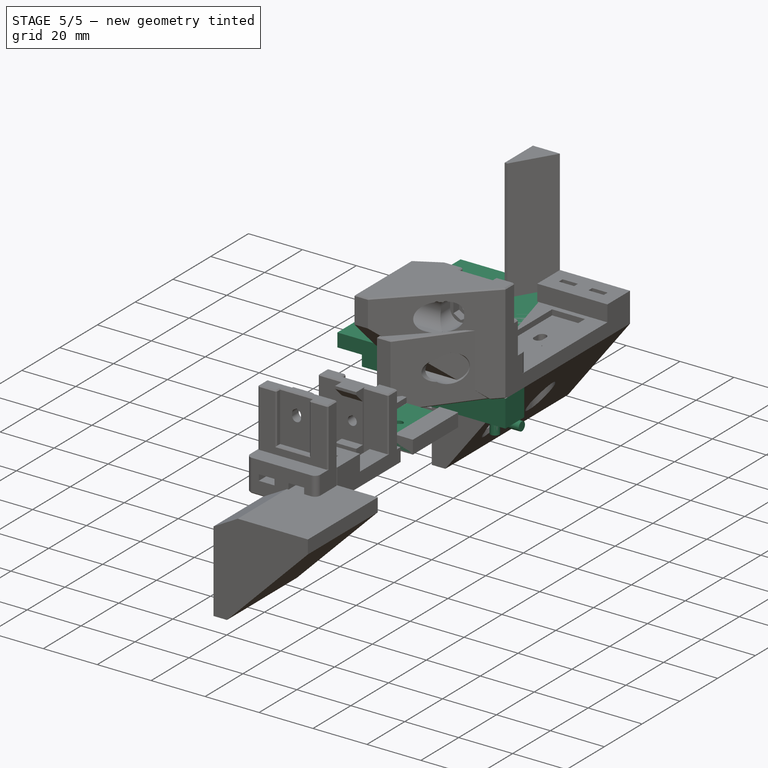
[diagram: stage 5 of 5 — iso view after this stage's code; geometry added in this stage tinted green]
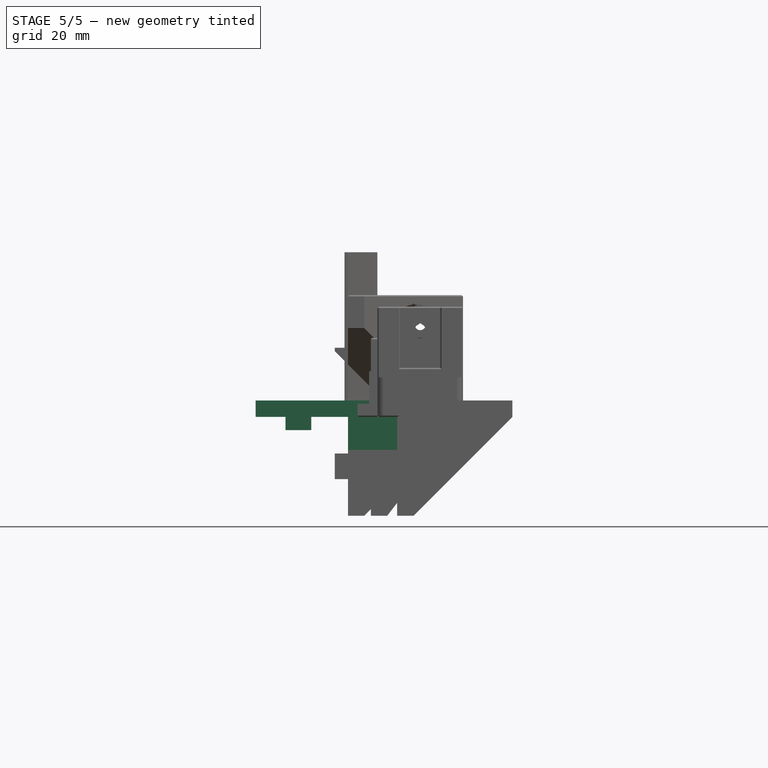
[diagram: stage 5 of 5 — front view after this stage's code; geometry added in this stage tinted green]
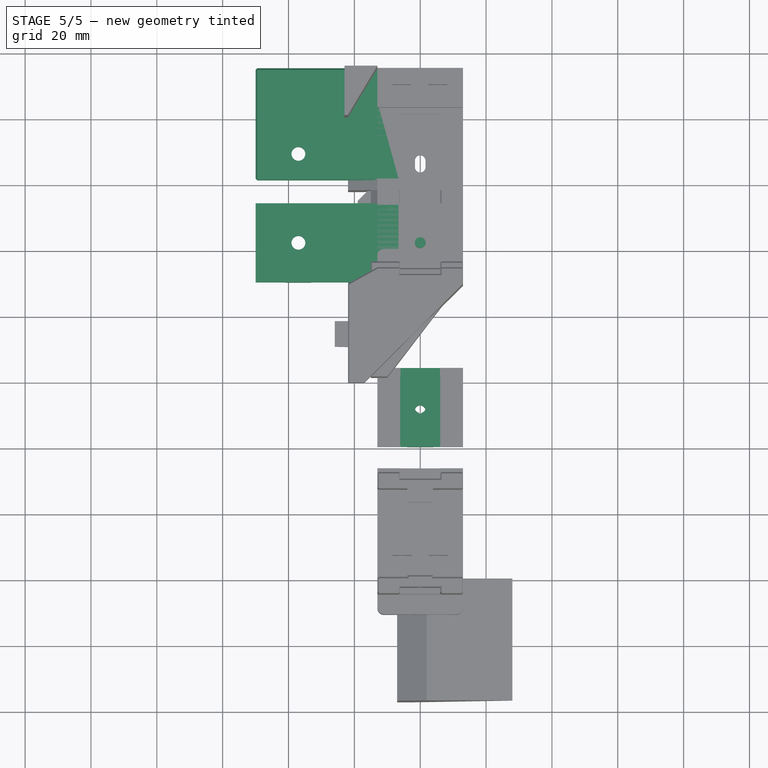
[diagram: stage 5 of 5 — top view after this stage's code; geometry added in this stage tinted green]
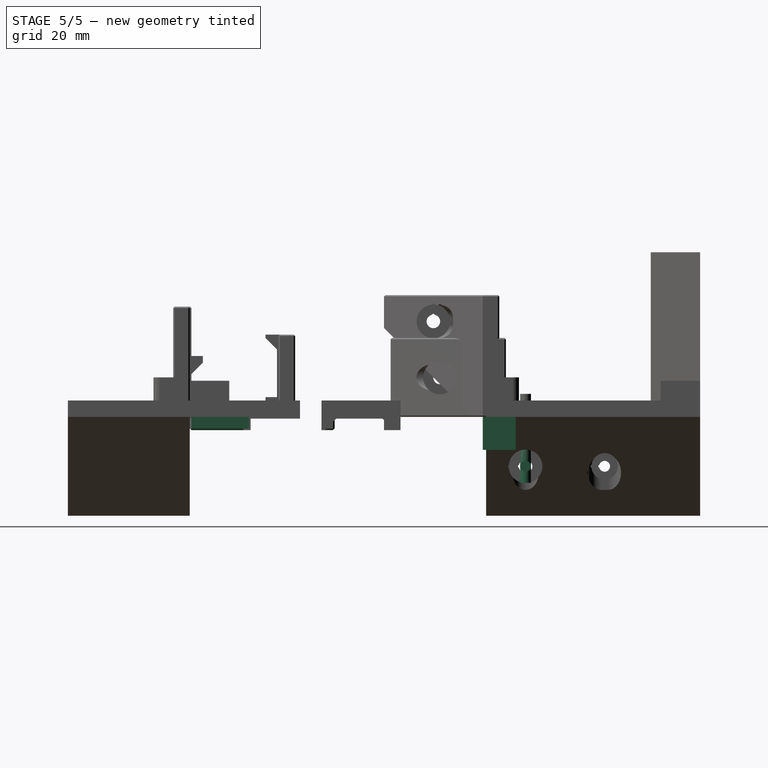
[diagram: stage 5 of 5 — right view after this stage's code; geometry added in this stage tinted green]
FEATURE [App::DocumentObjectGroup] Group002  label="tail"
FEATURE [Part::Cylinder] Cylinder003  label="rail-bolt001"
  Angle = 360
  AttacherType = Attacher::AttachEngine3D
  Height = 10
  Placement = pos=(0,52,-4) rot=(0,0,1;0rad)
  Radius = 1.65
FEATURE [Part::Box] Box030  label="Cube002"
  AttacherType = Attacher::AttachEngine3D
  Height = 4
  Length = 8
  Placement = pos=(-41,110,-4) rot=(0,0,1;0rad)
  Width = 4
FEATURE [Part::Box] Box031  label="rail-side-007"
  AttacherType = Attacher::AttachEngine3D
  Height = 5
  Length = 7
  Placement = pos=(-13,90,0) rot=(0,0,1;0rad)
  Width = 24
FEATURE [Part::Cylinder] Cylinder015  label="rail-bolt007"
  Angle = 360
  AttacherType = Attacher::AttachEngine3D
  Height = 10
  Placement = pos=(0,102,0) rot=(0,0,1;0rad)
  Radius = 1.6
FEATURE [Part::Box] Box032  label="base003"
  AttacherType = Attacher::AttachEngine3D
  Height = 3
  Length = 26
  Placement = pos=(-13,90,0) rot=(0,0,1;0rad)
  Width = 24
FEATURE [Part::Box] Box033  label="ref-spacer004"
  AttacherType = Attacher::AttachEngine3D
  Height = 5
  Length = 37
  Placement = pos=(-50,90,0) rot=(0,0,1;0rad)
  Width = 24
FEATURE [Part::Cylinder] Cylinder016  label="t-slot-bolt002"
  Angle = 360
  AttacherType = Attacher::AttachEngine3D
  Height = 10
  Placement = pos=(-37,102,0) rot=(0,0,1;0rad)
  Radius = 2.1
FEATURE [Part::Box] Box035  label="rail-side-008"
  AttacherType = Attacher::AttachEngine3D
  Height = 5
  Length = 7
  Placement = pos=(6,90,0) rot=(0,0,1;0rad)
  Width = 24
FEATURE [Part::Box] Box037  label="ref-spacer005"
  AttacherType = Attacher::AttachEngine3D
  Height = 10
  Length = 7
  Placement = pos=(-22,90,-10) rot=(0,0,1;0rad)
  Width = 24
FEATURE [Part::Box] Box042  label="01-cut-out004"
  AttacherType = Attacher::AttachEngine3D
  Height = 2
  Length = 12.2
  Placement = pos=(-6.1,90,3) rot=(0,0,1;0rad)
  Width = 24
FEATURE [Part::Box] Box049  label="side-cut-x003"
  AttacherType = Attacher::AttachEngine3D
  Height = 10
  Length = 0.1
  Placement = pos=(-22,90,-10) rot=(0,0,1;0rad)
  Width = 24
FEATURE [Part::Box] Box050  label="side-cut-r003"
  AttacherType = Attacher::AttachEngine3D
  Height = 4
  Length = 0.1
  Placement = pos=(-33.1,90,-4) rot=(0,0,1;0rad)
  Width = 24
FEATURE [Part::Box] Box054  label="side-cut-r007"
  AttacherType = Attacher::AttachEngine3D
  Height = 4
  Length = 0.1
  Placement = pos=(-41,90,-4) rot=(0,0,1;0rad)
  Width = 24
FEATURE [Part::Box] Box062  label="Cube004"
  AttacherType = Attacher::AttachEngine3D
  Height = 4
  Length = 8
  Placement = pos=(-4,98,-4) rot=(0,0,1;0rad)
  Width = 7
FEATURE [Part::Feature] Body011  label="45-slope009"
  Placement = pos=(4,105,4) rot=(0,0,1;3.14159rad)
  shape: bbox 8 x 4 x 4 mm, 5 faces (baked)
FEATURE [Part::Feature] Body013  label="nut-slot-hex"
  Placement = pos=(0,102,-5) rot=(0,0,1;0rad)
  shape: bbox 5.283 x 6.1 x 5 mm, 8 faces (baked)
FEATURE [Part::Feature] Body023  label="angle-support002"
  Placement = pos=(1,114,14) rot=(0,0,1;0rad)
  shape: bbox 28 x 3 x 10 mm, 5 faces (baked)
FEATURE [Part::MultiFuse] Fusion006
  Shapes = -> [Box032,Box037,Box030,Box033,Box035,Box031,Body007,Box062,Body011,Body023]
FEATURE [Part::MultiFuse] Fusion007
  Shapes = -> [Cylinder015,Box054,Cylinder016,Box050,Box049,Box042,Body013]
FEATURE [Part::Cut] Cut003
  Base = -> Fusion006
  Tool = -> Fusion007
FEATURE [Part::Feature] Cut001001  label="node-basic"
  shape: bbox 26 x 22 x 9 mm, 18 faces (baked)
FEATURE [Part::Chamfer] Chamfer  label="node-exp"
  Base = -> Cut001001
  Edges = 37 edges r=0.5: [Edge2,Edge3,Edge4,Edge5,Edge6,Edge7,Edge9,Edge10,Edge12,Edge13,Edge14,Edge15,Edge16,Edge17,Edge18,Edge19,Edge20,Edge21,Edge22,Edge24,Edge25,Edge26,Edge27,Edge28,Edge29,Edge31,Edge32,Edge33,Edge34,Edge35,Edge36,Edge37,Edge38,Edge39,Edge41,Edge43,Edge45]
FEATURE [Part::Feature] Body025  label="hex-nut"
  shape: bbox 5.543 x 6.4 x 5 mm, 8 faces (baked)
FEATURE [Part::Feature] Body026  label="hex-nut001"
  Placement = pos=(0,102,-5) rot=(0,0,1;0rad)
  shape: bbox 5.543 x 6.4 x 5 mm, 8 faces (baked)
FEATURE [Part::Cut] Cut
  Base = -> Cut003
  Tool = -> Body026
FEATURE [Part::Feature] Cut001002  label="Cut004"
  shape: bbox 63 x 24 x 15 mm, 37 faces (baked)
FEATURE [Part::Chamfer] Chamfer001  label="bridge-exp"
  Base = -> Cut001002
  Edges = 46 edges r=0.5: [Edge1,Edge3,Edge4,Edge5,Edge6,Edge7,Edge8,Edge10,Edge12,Edge13,Edge15,Edge19,Edge20,Edge22,Edge23,Edge24,Edge26,Edge27,Edge28,Edge29,Edge30,Edge31,Edge32,Edge33,Edge34,Edge35,Edge36,Edge37,Edge38,Edge39,Edge40,Edge41,Edge42,Edge44,Edge45,Edge46,Edge47,Edge48,Edge49,Edge50,Edge52,Edge58,Edge59,+3 more]
FEATURE [Part::Feature] Cut001003001  label="head-basic"
  shape: bbox 26 x 33.5 x 15 mm, 36 faces (baked)
FEATURE [Part::Chamfer] Chamfer002  label="head-exp"
  Base = -> Cut001003001
  Edges = 32 edges r=0.5: [Edge2,Edge3,Edge7,Edge8,Edge9,Edge11,Edge14,Edge15,Edge16,Edge18,Edge19,Edge20,Edge21,Edge22,Edge23,Edge25,Edge27,Edge28,Edge29,Edge30,Edge31,Edge50,Edge51,Edge52,Edge60,Edge61,Edge83,Edge84,Edge85,Edge86,Edge99,Edge100]
FEATURE [Part::Feature] Cut001003002001  label="Cut001003003"
  shape: bbox 63 x 34 x 21 mm, 58 faces (baked)
FEATURE [Part::Chamfer] Chamfer003  label="tail-exp"
  Base = -> Cut001003002001
  Edges = 51 edges r=0.5: [Edge5,Edge6,Edge7,Edge8,Edge9,Edge14,Edge16,Edge18,Edge20,Edge21,Edge22,Edge23,Edge24,Edge25,Edge26,Edge27,Edge28,Edge29,Edge30,Edge33,Edge34,Edge81,Edge82,Edge83,Edge84,Edge85,Edge86,Edge87,Edge88,Edge89,Edge90,Edge92,Edge94,Edge95,Edge97,Edge98,Edge99,Edge100,Edge101,Edge102,Edge103,Edge104,+9 more]
FEATURE [Part::Box] Box  label="Cube"
  AttacherType = Attacher::AttachEngine3D
  Height = 10
  Length = 28
  Placement = pos=(-15,89,-10) rot=(0,0,1;0rad)
  Width = 10
FEATURE [Part::Cylinder] Cylinder052
  Angle = 360
  AttacherType = Attacher::AttachEngine3D
  Height = 27
  Placement = pos=(10,102,-15) rot=(0,-1,0;1.5708rad)
  Radius = 1.65
FEATURE [Part::Cylinder] Cylinder053
  Angle = 360
  AttacherType = Attacher::AttachEngine3D
  Height = 27
  Placement = pos=(0,102,-20) rot=(0,0,1;0rad)
  Radius = 1.65
FEATURE [Sketcher::SketchObject] Sketch001
  MapMode = 5
  Support = -> [XY_Plane001]
  sketch-geometry (7):
    g0: LineSegment StartX=0 StartY=-3.2 StartZ=0 EndX=2.77128 EndY=-1.6 EndZ=0
    g1: LineSegment StartX=2.77128 StartY=-1.6 StartZ=0 EndX=2.77128 EndY=1.6 EndZ=0
    g2: LineSegment StartX=2.77128 StartY=1.6 StartZ=0 EndX=4e-16 EndY=3.2 EndZ=0
    g3: LineSegment StartX=4e-16 StartY=3.2 StartZ=0 EndX=-2.77128 EndY=1.6 EndZ=0
    g4: LineSegment StartX=-2.77128 StartY=1.6 StartZ=0 EndX=-2.77128 EndY=-1.6 EndZ=0
    g5: LineSegment StartX=-2.77128 StartY=-1.6 StartZ=0 EndX=0 EndY=-3.2 EndZ=0
    g6: Circle [constr] CenterX=0 CenterY=0 CenterZ=0 NormalX=0 NormalY=0 NormalZ=1 AngleXU=0 Radius=3.2
  constraints (13):
    c: Coincident(g0,g1)
    c: Coincident(g1,g2)
    c: Coincident(g2,g3)
    c: Coincident(g3,g4)
    c: Coincident(g4,g5)
    c: Coincident(g5,g0)
    c: Equal(g0, g1-g5) x5
    c: PointOnObject(g0,g6)
    c: PointOnObject(g1,g6)
    c: PointOnObject(g2,g6)
    c: PointOnObject(g3,g6)
    c: PointOnObject(g4,g6)
    c: PointOnObject(g5,g6)
FEATURE [PartDesign::Pad] Pad001
  Length = 3
  Length2 = 100
  Profile = -> Sketch001
  Type = 0
FEATURE [Part::Cylinder] Cylinder066  label="rail-bolt024"
  Angle = 360
  AttacherType = Attacher::AttachEngine3D
  Height = 10
  Placement = pos=(0,50.6,-4) rot=(0,0,1;0rad)
  Radius = 0.5
FEATURE [Part::Box] Box010  label="base001"
  AttacherType = Attacher::AttachEngine3D
  Height = 3
  Length = 26
  Placement = pos=(-13,40,0) rot=(0,0,1;0rad)
  Width = 24
FEATURE [Part::MultiFuse] Fusion029
  Shapes = -> [Box010,Fusion028]
FEATURE [Part::Cut] Cut001003002039
  Base = -> Fusion029
  Tool = -> Cylinder003
FEATURE [Part::Cut] Cut001003002040  label="node-rev-2"
  Base = -> Cut001003002039
  Tool = -> Cylinder066
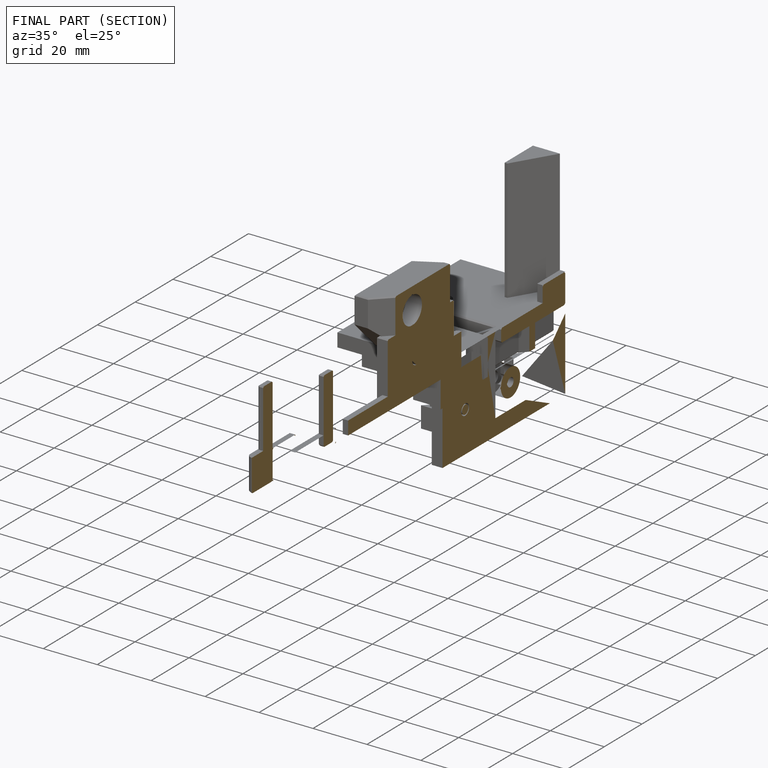
[diagram: finished part — half-section view (interior)]
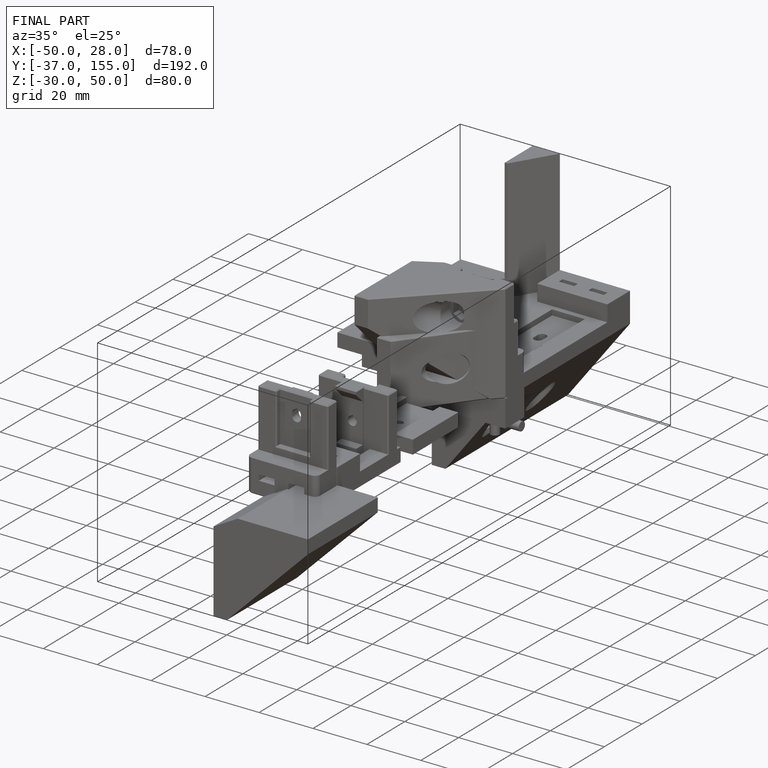
[diagram: finished part — iso view with bounding-box wireframe]
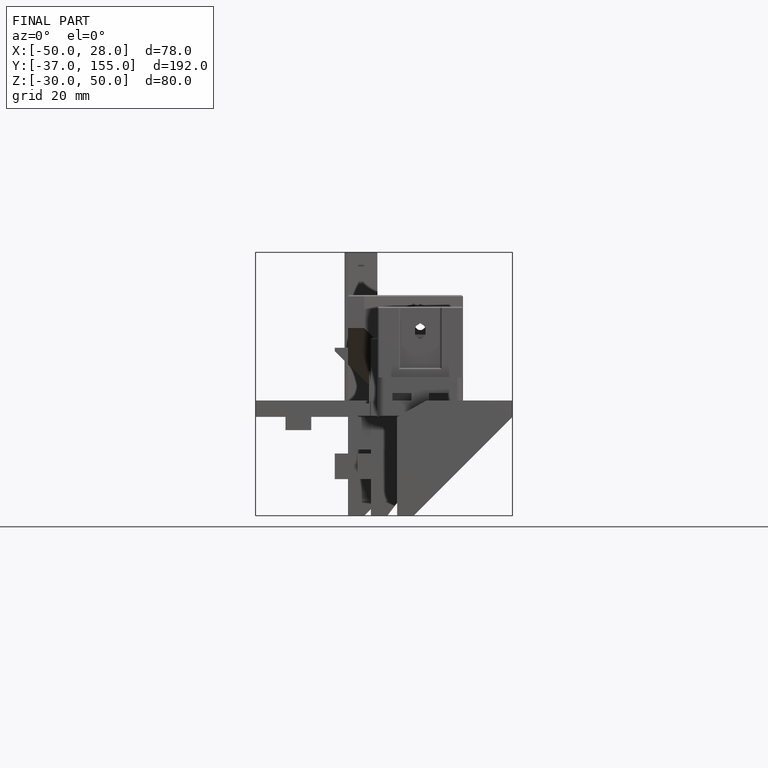
[diagram: finished part — front view with bounding-box wireframe]
